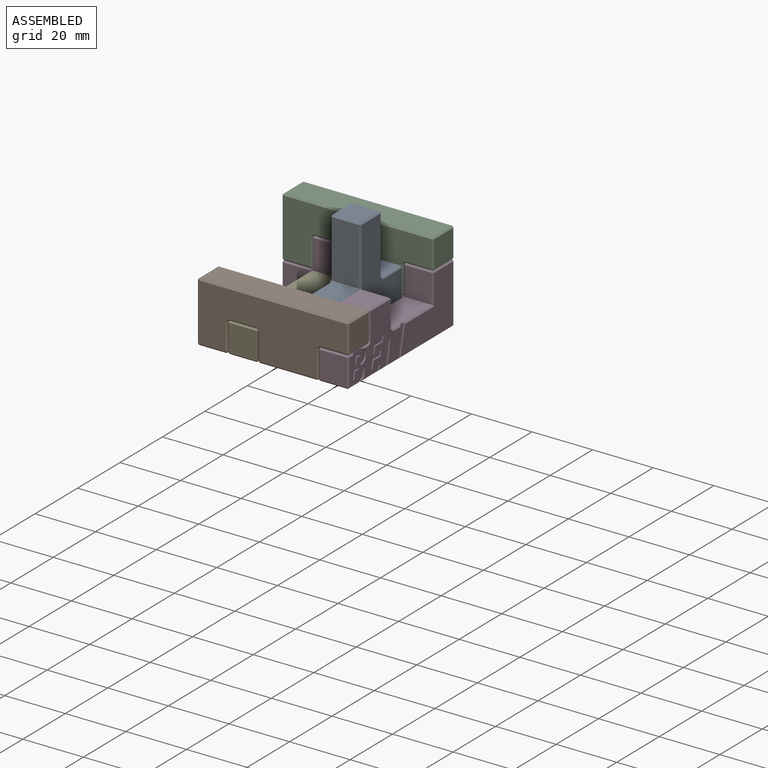
[diagram: assembled view]
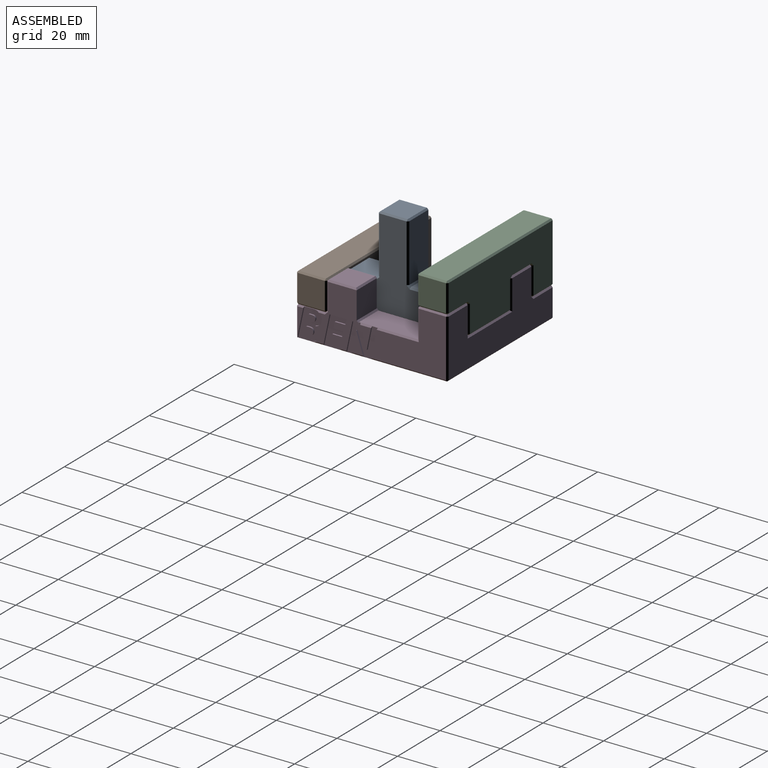
[diagram: assembled view, second angle]
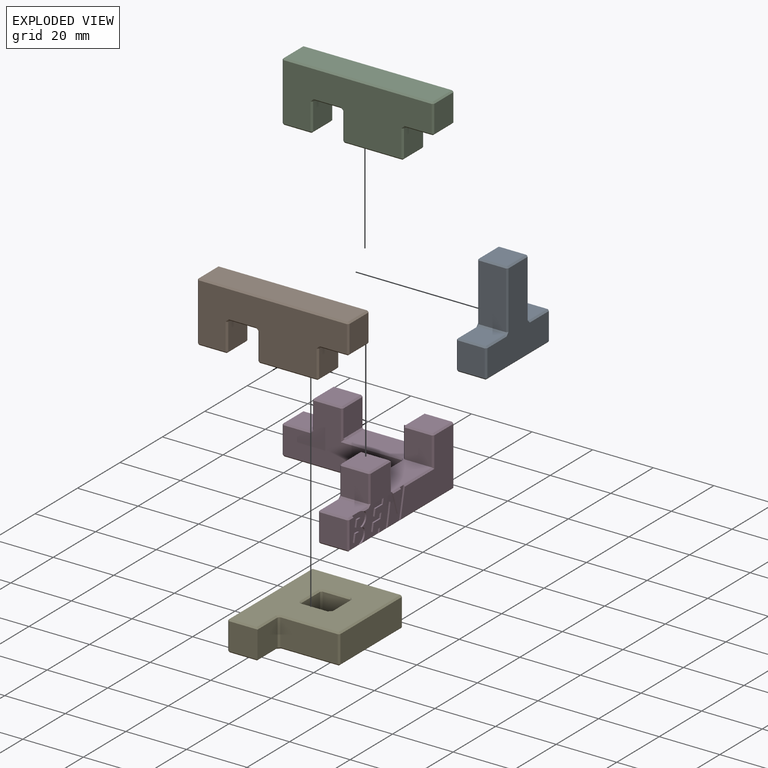
[diagram: exploded view]
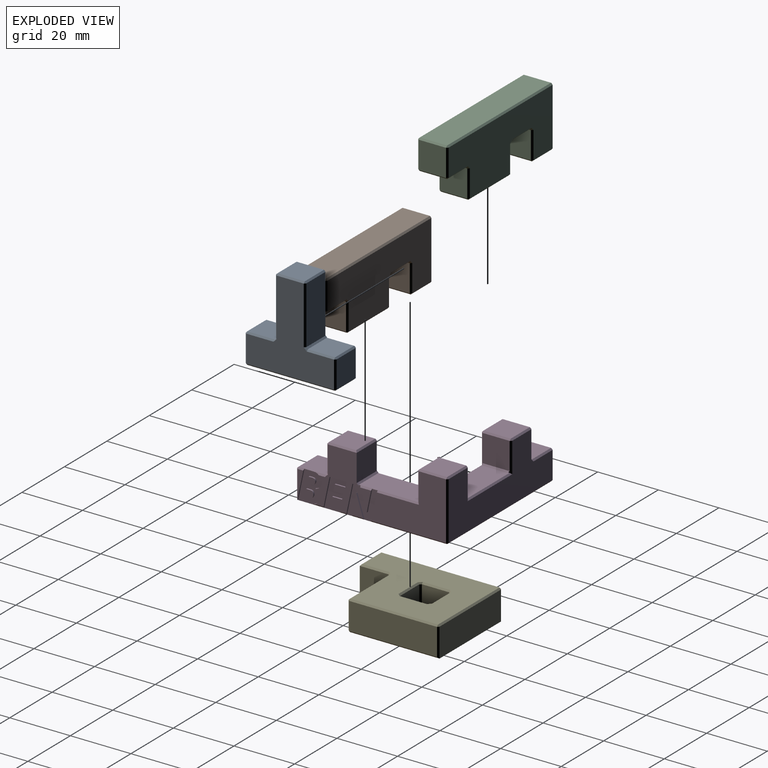
[diagram: exploded view, second angle]
ASSEMBLY  parts=5 mates=3
PART A: 50 faces, bbox 30x30x10 mm
  f0: plane 29x29mm, normal (0,0,1), area 442mm2, adj f10,f11,f14,f15,f24,f25,f30,f34
  f1: plane 29x29mm, normal (0,0,-1), area 442mm2, adj f17,f18,f22,f27,f32,f38,f42,f43
  f2: plane 29x9mm, normal (0,1,0), area 261mm2, adj f33,f34,f43,f44
  f3: plane 9x9mm, normal (-1,0,0), area 81mm2, adj f35,f44,f45,f49
  f4: plane 9x9mm, normal (0,-1,0), area 81mm2, adj f36,f37,f45,f46
  f5: plane 19x9mm, normal (-1,0,0), area 171mm2, adj f25,f26,f37,f38
  f6: plane 9x9mm, normal (0,-1,0), area 81mm2, adj f15,f16,f26,f27
  f7: plane 19x9mm, normal (1,0,0), area 171mm2, adj f10,f13,f16,f17
  f8: plane 9x9mm, normal (0,-1,0), area 81mm2, adj f13,f14,f22,f23
  f9: plane 9x9mm, normal (1,0,0), area 81mm2, adj f23,f24,f32,f33
  f10: plane 19x0.5mm, normal (0.71,0,0.71), area 13.4mm2, adj f0,f7,f11,f12
  f11: plane 1x1mm, normal (0.58,-0.58,0.58), area 0.6mm2, adj f0,f10,f13,f14
  f12: plane 0.5x0.5mm, normal (0.58,-0.58,0.58), area 0.2mm2, adj f10,f15,f16
  f13: plane 9x0.5mm, normal (0.71,-0.71,0), area 6.4mm2, adj f7,f8,f11,f18
  f14: plane 9x0.5mm, normal (0,-0.71,0.71), area 6.4mm2, adj f0,f8,f11,f19
  f15: plane 9x0.5mm, normal (0,-0.71,0.71), area 6.4mm2, adj f0,f6,f12,f20
  f16: plane 9x0.5mm, normal (0.71,-0.71,0), area 6.4mm2, adj f6,f7,f12,f21
  f17: plane 19x0.5mm, normal (0.71,0,-0.71), area 13.4mm2, adj f1,f7,f18,f21
  f18: plane 1x1mm, normal (0.58,-0.58,-0.58), area 0.6mm2, adj f1,f13,f17,f22
  f19: plane 0.5x0.5mm, normal (0.58,-0.58,0.58), area 0.2mm2, adj f14,f23,f24
  f20: plane 0.5x0.5mm, normal (-0.58,-0.58,0.58), area 0.2mm2, adj f15,f25,f26
  f21: plane 0.5x0.5mm, normal (0.58,-0.58,-0.58), area 0.2mm2, adj f16,f17,f27
  f22: plane 9x0.5mm, normal (0,-0.71,-0.71), area 6.4mm2, adj f1,f8,f18,f28
  f23: plane 9x0.5mm, normal (0.71,-0.71,0), area 6.4mm2, adj f8,f9,f19,f28
  f24: plane 9x0.5mm, normal (0.71,0,0.71), area 6.4mm2, adj f0,f9,f19,f29
  f25: plane 19x0.5mm, normal (-0.71,0,0.71), area 13.4mm2, adj f0,f5,f20,f30
  f26: plane 9x0.5mm, normal (-0.71,-0.71,0), area 6.4mm2, adj f5,f6,f20,f31
  f27: plane 9x0.5mm, normal (0,-0.71,-0.71), area 6.4mm2, adj f1,f6,f21,f31
  f28: plane 0.5x0.5mm, normal (0.58,-0.58,-0.58), area 0.2mm2, adj f22,f23,f32
  f29: plane 0.5x0.5mm, normal (0.58,0.58,0.58), area 0.2mm2, adj f24,f33,f34
  f30: plane 1x1mm, normal (-0.58,-0.58,0.58), area 0.6mm2, adj f0,f25,f36,f37
  f31: plane 0.5x0.5mm, normal (-0.58,-0.58,-0.58), area 0.2mm2, adj f26,f27,f38
  f32: plane 9x0.5mm, normal (0.71,0,-0.71), area 6.4mm2, adj f1,f9,f28,f39
  f33: plane 9x0.5mm, normal (0.71,0.71,0), area 6.4mm2, adj f2,f9,f29,f39
  f34: plane 29x0.5mm, normal (0,0.71,0.71), area 20.5mm2, adj f0,f2,f29,f40
  f35: plane 9x0.5mm, normal (-0.71,0,0.71), area 6.4mm2, adj f0,f3,f40,f41
  f36: plane 9x0.5mm, normal (0,-0.71,0.71), area 6.4mm2, adj f0,f4,f30,f41
  f37: plane 9x0.5mm, normal (-0.71,-0.71,0), area 6.4mm2, adj f4,f5,f30,f42
  f38: plane 19x0.5mm, normal (-0.71,0,-0.71), area 13.4mm2, adj f1,f5,f31,f42
  f39: plane 0.5x0.5mm, normal (0.58,0.58,-0.58), area 0.2mm2, adj f32,f33,f43
  f40: plane 0.5x0.5mm, normal (-0.58,0.58,0.58), area 0.2mm2, adj f34,f35,f44
  f41: plane 0.5x0.5mm, normal (-0.58,-0.58,0.58), area 0.2mm2, adj f35,f36,f45
  f42: plane 1x1mm, normal (-0.58,-0.58,-0.58), area 0.6mm2, adj f1,f37,f38,f46
  f43: plane 29x0.5mm, normal (0,0.71,-0.71), area 20.5mm2, adj f1,f2,f39,f47
  f44: plane 9x0.5mm, normal (-0.71,0.71,0), area 6.4mm2, adj f2,f3,f40,f47
  f45: plane 9x0.5mm, normal (-0.71,-0.71,0), area 6.4mm2, adj f3,f4,f41,f48
  f46: plane 9x0.5mm, normal (0,-0.71,-0.71), area 6.4mm2, adj f1,f4,f42,f48
  f47: plane 0.5x0.5mm, normal (-0.58,0.58,-0.58), area 0.2mm2, adj f43,f44,f49
  f48: plane 0.5x0.5mm, normal (-0.58,-0.58,-0.58), area 0.2mm2, adj f45,f46,f49
  f49: plane 9x0.5mm, normal (-0.71,0,-0.71), area 6.4mm2, adj f1,f3,f47,f48
PART B: 62 faces, bbox 50x20x10 mm
  f0: plane 49x19mm, normal (0,0,1), area 722.5mm2, adj f12,f13,f15,f19,f24,f29,f34,f39
  f1: plane 49x19mm, normal (0,0,-1), area 722.5mm2, adj f17,f21,f26,f27,f36,f37,f46,f47
  f2: plane 9x9mm, normal (-1,0,0), area 81mm2, adj f18,f19,f27,f28
  f3: plane 49x9mm, normal (0,-1,0), area 441mm2, adj f28,f29,f37,f38
  f4: plane 19x9mm, normal (1,0,0), area 171mm2, adj f38,f39,f47,f48
  f5: plane 9x9mm, normal (0,1,0), area 81mm2, adj f48,f49,f57,f58
  f6: plane 9x9mm, normal (-1,0,0), area 81mm2, adj f50,f55,f58,f61
  f7: plane 9x9mm, normal (0,1,0), area 81mm2, adj f44,f45,f55,f56
  f8: plane 9x9mm, normal (1,0,0), area 81mm2, adj f34,f35,f45,f46
  f9: plane 19x9mm, normal (0,1,0), area 171mm2, adj f24,f25,f35,f36
  f10: plane 9x9mm, normal (-1,0,0), area 81mm2, adj f15,f16,f25,f26
  f11: plane 9x9mm, normal (0,1,0), area 81mm2, adj f12,f16,f17,f18
  f12: plane 9x0.5mm, normal (0,0.71,0.71), area 6.4mm2, adj f0,f11,f13,f14
  f13: plane 1x1mm, normal (-0.58,0.58,0.58), area 0.6mm2, adj f0,f12,f15,f16
  f14: plane 0.5x0.5mm, normal (-0.58,0.58,0.58), area 0.2mm2, adj f12,f18,f19
  f15: plane 9x0.5mm, normal (-0.71,0,0.71), area 6.4mm2, adj f0,f10,f13,f20
  f16: plane 9x0.5mm, normal (-0.71,0.71,0), area 6.4mm2, adj f10,f11,f13,f21
  f17: plane 9x0.5mm, normal (0,0.71,-0.71), area 6.4mm2, adj f1,f11,f21,f22
  f18: plane 9x0.5mm, normal (-0.71,0.71,0), area 6.4mm2, adj f2,f11,f14,f22
  f19: plane 9x0.5mm, normal (-0.71,0,0.71), area 6.4mm2, adj f0,f2,f14,f23
  f20: plane 0.5x0.5mm, normal (-0.58,0.58,0.58), area 0.2mm2, adj f15,f24,f25
  f21: plane 1x1mm, normal (-0.58,0.58,-0.58), area 0.6mm2, adj f1,f16,f17,f26
  f22: plane 0.5x0.5mm, normal (-0.58,0.58,-0.58), area 0.2mm2, adj f17,f18,f27
  f23: plane 0.5x0.5mm, normal (-0.58,-0.58,0.58), area 0.2mm2, adj f19,f28,f29
  f24: plane 19x0.5mm, normal (0,0.71,0.71), area 13.4mm2, adj f0,f9,f20,f30
  f25: plane 9x0.5mm, normal (-0.71,0.71,0), area 6.4mm2, adj f9,f10,f20,f31
  f26: plane 9x0.5mm, normal (-0.71,0,-0.71), area 6.4mm2, adj f1,f10,f21,f31
  f27: plane 9x0.5mm, normal (-0.71,0,-0.71), area 6.4mm2, adj f1,f2,f22,f32
  f28: plane 9x0.5mm, normal (-0.71,-0.71,0), area 6.4mm2, adj f2,f3,f23,f32
  f29: plane 49x0.5mm, normal (0,-0.71,0.71), area 34.6mm2, adj f0,f3,f23,f33
  f30: plane 0.5x0.5mm, normal (0.58,0.58,0.58), area 0.2mm2, adj f24,f34,f35
  f31: plane 0.5x0.5mm, normal (-0.58,0.58,-0.58), area 0.2mm2, adj f25,f26,f36
  f32: plane 0.5x0.5mm, normal (-0.58,-0.58,-0.58), area 0.2mm2, adj f27,f28,f37
  f33: plane 0.5x0.5mm, normal (0.58,-0.58,0.58), area 0.2mm2, adj f29,f38,f39
  f34: plane 9x0.5mm, normal (0.71,0,0.71), area 6.4mm2, adj f0,f8,f30,f40
  f35: plane 9x0.5mm, normal (0.71,0.71,0), area 6.4mm2, adj f8,f9,f30,f41
  f36: plane 19x0.5mm, normal (0,0.71,-0.71), area 13.4mm2, adj f1,f9,f31,f41
  f37: plane 49x0.5mm, normal (0,-0.71,-0.71), area 34.6mm2, adj f1,f3,f32,f42
  f38: plane 9x0.5mm, normal (0.71,-0.71,0), area 6.4mm2, adj f3,f4,f33,f42
  f39: plane 19x0.5mm, normal (0.71,0,0.71), area 13.4mm2, adj f0,f4,f33,f43
  f40: plane 1x1mm, normal (0.58,0.58,0.58), area 0.6mm2, adj f0,f34,f44,f45
  f41: plane 0.5x0.5mm, normal (0.58,0.58,-0.58), area 0.2mm2, adj f35,f36,f46
  f42: plane 0.5x0.5mm, normal (0.58,-0.58,-0.58), area 0.2mm2, adj f37,f38,f47
  f43: plane 0.5x0.5mm, normal (0.58,0.58,0.58), area 0.2mm2, adj f39,f48,f49
  f44: plane 9x0.5mm, normal (0,0.71,0.71), area 6.4mm2, adj f0,f7,f40,f51
  f45: plane 9x0.5mm, normal (0.71,0.71,0), area 6.4mm2, adj f7,f8,f40,f52
  f46: plane 9x0.5mm, normal (0.71,0,-0.71), area 6.4mm2, adj f1,f8,f41,f52
  f47: plane 19x0.5mm, normal (0.71,0,-0.71), area 13.4mm2, adj f1,f4,f42,f53
  f48: plane 9x0.5mm, normal (0.71,0.71,0), area 6.4mm2, adj f4,f5,f43,f53
  f49: plane 9x0.5mm, normal (0,0.71,0.71), area 6.4mm2, adj f0,f5,f43,f54
  f50: plane 9x0.5mm, normal (-0.71,0,0.71), area 6.4mm2, adj f0,f6,f51,f54
  f51: plane 1x1mm, normal (-0.58,0.58,0.58), area 0.6mm2, adj f0,f44,f50,f55
  f52: plane 1x1mm, normal (0.58,0.58,-0.58), area 0.6mm2, adj f1,f45,f46,f56
  f53: plane 0.5x0.5mm, normal (0.58,0.58,-0.58), area 0.2mm2, adj f47,f48,f57
  f54: plane 0.5x0.5mm, normal (-0.58,0.58,0.58), area 0.2mm2, adj f49,f50,f58
  f55: plane 9x0.5mm, normal (-0.71,0.71,0), area 6.4mm2, adj f6,f7,f51,f59
  f56: plane 9x0.5mm, normal (0,0.71,-0.71), area 6.4mm2, adj f1,f7,f52,f59
  f57: plane 9x0.5mm, normal (0,0.71,-0.71), area 6.4mm2, adj f1,f5,f53,f60
  f58: plane 9x0.5mm, normal (-0.71,0.71,0), area 6.4mm2, adj f5,f6,f54,f60
  f59: plane 1x1mm, normal (-0.58,0.58,-0.58), area 0.6mm2, adj f1,f55,f56,f61
  f60: plane 0.5x0.5mm, normal (-0.58,0.58,-0.58), area 0.2mm2, adj f57,f58,f61
  f61: plane 9x0.5mm, normal (-0.71,0,-0.71), area 6.4mm2, adj f1,f6,f59,f60
PART C: 62 faces, bbox 50x20x10 mm
  f0: plane 49x19mm, normal (0,0,1), area 722.5mm2, adj f15,f16,f25,f26,f32,f35,f36,f45
  f1: plane 49x19mm, normal (0,0,-1), area 722.5mm2, adj f18,f19,f28,f29,f33,f38,f39,f48
  f2: plane 9x9mm, normal (-1,0,0), area 81mm2, adj f12,f16,f17,f18
  f3: plane 49x9mm, normal (0,-1,0), area 441mm2, adj f12,f15,f19,f20
  f4: plane 19x9mm, normal (1,0,0), area 171mm2, adj f20,f25,f29,f30
  f5: plane 9x9mm, normal (0,1,0), area 81mm2, adj f30,f35,f39,f40
  f6: plane 9x9mm, normal (-1,0,0), area 81mm2, adj f40,f45,f49,f50
  f7: plane 9x9mm, normal (0,1,0), area 81mm2, adj f50,f55,f58,f61
  f8: plane 9x9mm, normal (1,0,0), area 81mm2, adj f47,f56,f57,f61
  f9: plane 19x9mm, normal (0,1,0), area 171mm2, adj f37,f46,f47,f48
  f10: plane 9x9mm, normal (-1,0,0), area 81mm2, adj f27,f36,f37,f38
  f11: plane 9x9mm, normal (0,1,0), area 81mm2, adj f17,f26,f27,f28
  f12: plane 9x0.5mm, normal (-0.71,-0.71,0), area 6.4mm2, adj f2,f3,f13,f14
  f13: plane 0.5x0.5mm, normal (-0.58,-0.58,0.58), area 0.2mm2, adj f12,f15,f16
  f14: plane 0.5x0.5mm, normal (-0.58,-0.58,-0.58), area 0.2mm2, adj f12,f18,f19
  f15: plane 49x0.5mm, normal (0,-0.71,0.71), area 34.6mm2, adj f0,f3,f13,f21
  f16: plane 9x0.5mm, normal (-0.71,0,0.71), area 6.4mm2, adj f0,f2,f13,f22
  f17: plane 9x0.5mm, normal (-0.71,0.71,0), area 6.4mm2, adj f2,f11,f22,f23
  f18: plane 9x0.5mm, normal (-0.71,0,-0.71), area 6.4mm2, adj f1,f2,f14,f23
  f19: plane 49x0.5mm, normal (0,-0.71,-0.71), area 34.6mm2, adj f1,f3,f14,f24
  f20: plane 9x0.5mm, normal (0.71,-0.71,0), area 6.4mm2, adj f3,f4,f21,f24
  f21: plane 0.5x0.5mm, normal (0.58,-0.58,0.58), area 0.2mm2, adj f15,f20,f25
  f22: plane 0.5x0.5mm, normal (-0.58,0.58,0.58), area 0.2mm2, adj f16,f17,f26
  f23: plane 0.5x0.5mm, normal (-0.58,0.58,-0.58), area 0.2mm2, adj f17,f18,f28
  f24: plane 0.5x0.5mm, normal (0.58,-0.58,-0.58), area 0.2mm2, adj f19,f20,f29
  f25: plane 19x0.5mm, normal (0.71,0,0.71), area 13.4mm2, adj f0,f4,f21,f31
  f26: plane 9x0.5mm, normal (0,0.71,0.71), area 6.4mm2, adj f0,f11,f22,f32
  f27: plane 9x0.5mm, normal (-0.71,0.71,0), area 6.4mm2, adj f10,f11,f32,f33
  f28: plane 9x0.5mm, normal (0,0.71,-0.71), area 6.4mm2, adj f1,f11,f23,f33
  f29: plane 19x0.5mm, normal (0.71,0,-0.71), area 13.4mm2, adj f1,f4,f24,f34
  f30: plane 9x0.5mm, normal (0.71,0.71,0), area 6.4mm2, adj f4,f5,f31,f34
  f31: plane 0.5x0.5mm, normal (0.58,0.58,0.58), area 0.2mm2, adj f25,f30,f35
  f32: plane 1x1mm, normal (-0.58,0.58,0.58), area 0.6mm2, adj f0,f26,f27,f36
  f33: plane 1x1mm, normal (-0.58,0.58,-0.58), area 0.6mm2, adj f1,f27,f28,f38
  f34: plane 0.5x0.5mm, normal (0.58,0.58,-0.58), area 0.2mm2, adj f29,f30,f39
  f35: plane 9x0.5mm, normal (0,0.71,0.71), area 6.4mm2, adj f0,f5,f31,f41
  f36: plane 9x0.5mm, normal (-0.71,0,0.71), area 6.4mm2, adj f0,f10,f32,f42
  f37: plane 9x0.5mm, normal (-0.71,0.71,0), area 6.4mm2, adj f9,f10,f42,f43
  f38: plane 9x0.5mm, normal (-0.71,0,-0.71), area 6.4mm2, adj f1,f10,f33,f43
  f39: plane 9x0.5mm, normal (0,0.71,-0.71), area 6.4mm2, adj f1,f5,f34,f44
  f40: plane 9x0.5mm, normal (-0.71,0.71,0), area 6.4mm2, adj f5,f6,f41,f44
  f41: plane 0.5x0.5mm, normal (-0.58,0.58,0.58), area 0.2mm2, adj f35,f40,f45
  f42: plane 0.5x0.5mm, normal (-0.58,0.58,0.58), area 0.2mm2, adj f36,f37,f46
  f43: plane 0.5x0.5mm, normal (-0.58,0.58,-0.58), area 0.2mm2, adj f37,f38,f48
  f44: plane 0.5x0.5mm, normal (-0.58,0.58,-0.58), area 0.2mm2, adj f39,f40,f49
  f45: plane 9x0.5mm, normal (-0.71,0,0.71), area 6.4mm2, adj f0,f6,f41,f51
  f46: plane 19x0.5mm, normal (0,0.71,0.71), area 13.4mm2, adj f0,f9,f42,f52
  f47: plane 9x0.5mm, normal (0.71,0.71,0), area 6.4mm2, adj f8,f9,f52,f53
  f48: plane 19x0.5mm, normal (0,0.71,-0.71), area 13.4mm2, adj f1,f9,f43,f53
  f49: plane 9x0.5mm, normal (-0.71,0,-0.71), area 6.4mm2, adj f1,f6,f44,f54
  f50: plane 9x0.5mm, normal (-0.71,0.71,0), area 6.4mm2, adj f6,f7,f51,f54
  f51: plane 1x1mm, normal (-0.58,0.58,0.58), area 0.6mm2, adj f0,f45,f50,f55
  f52: plane 0.5x0.5mm, normal (0.58,0.58,0.58), area 0.2mm2, adj f46,f47,f56
  f53: plane 0.5x0.5mm, normal (0.58,0.58,-0.58), area 0.2mm2, adj f47,f48,f57
  f54: plane 1x1mm, normal (-0.58,0.58,-0.58), area 0.6mm2, adj f1,f49,f50,f58
  f55: plane 9x0.5mm, normal (0,0.71,0.71), area 6.4mm2, adj f0,f7,f51,f59
  f56: plane 9x0.5mm, normal (0.71,0,0.71), area 6.4mm2, adj f0,f8,f52,f59
  f57: plane 9x0.5mm, normal (0.71,0,-0.71), area 6.4mm2, adj f1,f8,f53,f60
  f58: plane 9x0.5mm, normal (0,0.71,-0.71), area 6.4mm2, adj f1,f7,f54,f60
  f59: plane 1x1mm, normal (0.58,0.58,0.58), area 0.6mm2, adj f0,f55,f56,f61
  f60: plane 1x1mm, normal (0.58,0.58,-0.58), area 0.6mm2, adj f1,f57,f58,f61
  f61: plane 9x0.5mm, normal (0.71,0.71,0), area 6.4mm2, adj f7,f8,f59,f60
PART D: 151 faces, bbox 50x50x20 mm
  f0: plane 9.63x0.5mm, normal (0,-0.71,-0.71), area 6.6mm2, adj f12,f17,f34,f49,f53,f114,f136
  f1: plane 0.51x0.51mm, normal (0,0,1), area 0.1mm2, adj f4,f5,f89
  f2: plane 21x0.75mm, normal (0,0.71,0.71), area 14.6mm2, adj f10,f15,f82,f86,f91
  f3: plane 19.25x0.5mm, normal (0.71,0.71,0), area 13.5mm2, adj f7,f10,f83,f84,f97
  f4: plane 10x0.51mm, normal (0,1,0), area 0.2mm2, adj f1,f15,f87,f89,f90
  f5: plane 10x0.51mm, normal (1,0,0), area 0.2mm2, adj f1,f15,f88,f89,f94
  f6: plane 9x9mm, normal (0,0,1), area 81mm2, adj f90,f94,f95,f98
  f7: plane 24.8x19mm, normal (1,0,0), area 304.6mm2, adj f3,f83,f85,f93,f98,f100
  f8: plane 7.23x3.69mm, normal (1,0,0), area 12.3mm2, adj f85,f103,f104,f105,f106
  f9: plane 39x19mm, normal (-1,0,0), area 442mm2, adj f37,f38,f42,f45,f49,f52,f53,f57
  f10: plane 49x19mm, normal (0,1,0), area 621.5mm2, adj f2,f3,f61,f69,f72,f76,f80,f82
  f11: plane 19.01x14.34mm, normal (1,0,0), area 148.2mm2, adj f24,f28,f29,f30,f31,f33,f40,f51
  f12: plane 49x49mm, normal (0,0,-1), area 801.5mm2, adj f0,f27,f28,f29,f53,f54,f56,f58
  f13: plane 7x3.65mm, normal (1,0,0), area 12.6mm2, adj f27,f101,f108,f109,f110,f111
  f14: plane 8.84x1.87mm, normal (1,0,0), area 8.2mm2, adj f33,f34,f114
  f15: plane 29x29mm, normal (0,0,1), area 351.4mm2, adj f2,f4,f5,f51,f62,f66,f70,f85
  f16: plane 9x9mm, normal (0,0,1), area 81mm2, adj f32,f33,f42,f43
  f17: plane 9x9mm, normal (0,-1,0), area 81mm2, adj f0,f34,f43,f49
  f18: plane 9x9mm, normal (0,0,1), area 81mm2, adj f59,f60,f68,f69
  f19: plane 39x19mm, normal (0,-1,0), area 441.5mm2, adj f48,f54,f59,f63,f64,f67,f70,f73
  f20: plane 9x9mm, normal (-1,0,0), area 81mm2, adj f48,f56,f60,f61
  f21: plane 9x9mm, normal (-1,0,0), area 81mm2, adj f67,f68,f75,f76
  f22: plane 9x9mm, normal (1,0,0), area 81mm2, adj f73,f79,f82,f86
  f23: plane 9x9mm, normal (0,0,1), area 81mm2, adj f74,f75,f79,f80
  f24: plane 9.5x9mm, normal (0,1,0), area 85.5mm2, adj f11,f44,f51,f52
  f25: plane 9x9mm, normal (0,-1,0), area 81mm2, adj f31,f32,f36,f37
  f26: plane 9x9mm, normal (0,0,1), area 81mm2, adj f36,f40,f44,f45
  f27: plane 3.91x0.5mm, normal (0.71,0,-0.71), area 2.7mm2, adj f12,f13,f101,f108
  f28: plane 2.09x0.5mm, normal (0.71,0,-0.71), area 1.4mm2, adj f11,f12,f99,f138
  f29: plane 5.18x0.5mm, normal (0.71,0,-0.71), area 2.5mm2, adj f11,f12,f113,f137
  f30: plane 1x1mm, normal (0.58,-0.58,0.58), area 0.6mm2, adj f11,f31,f32,f33
  f31: plane 9x0.5mm, normal (0.71,-0.71,0), area 6.4mm2, adj f11,f25,f30,f35
  f32: plane 9x0.5mm, normal (0,-0.71,0.71), area 6.4mm2, adj f16,f25,f30,f38
  f33: plane 9x0.5mm, normal (0.71,0,0.71), area 3.8mm2, adj f11,f14,f16,f30,f39,f114,f132,f134
  f34: plane 9.38x0.5mm, normal (0.71,-0.71,0), area 6.5mm2, adj f0,f14,f17,f39,f114
  f35: plane 0.5x0.5mm, normal (0.58,-0.58,0.58), area 0.2mm2, adj f31,f36,f40
  f36: plane 9x0.5mm, normal (0,-0.71,0.71), area 6.4mm2, adj f25,f26,f35,f41
  f37: plane 9x0.5mm, normal (-0.71,-0.71,0), area 6.4mm2, adj f9,f25,f38,f41
  f38: plane 1x1mm, normal (-0.58,-0.58,0.58), area 0.6mm2, adj f9,f32,f37,f42
  f39: plane 0.5x0.5mm, normal (0.58,-0.58,0.58), area 0.2mm2, adj f33,f34,f43
  f40: plane 9.5x0.5mm, normal (0.71,0,0.71), area 6.5mm2, adj f11,f26,f35,f44
  f41: plane 0.5x0.5mm, normal (-0.58,-0.58,0.58), area 0.2mm2, adj f36,f37,f45
  f42: plane 9x0.5mm, normal (-0.71,0,0.71), area 6.4mm2, adj f9,f16,f38,f46
  f43: plane 9x0.5mm, normal (0,-0.71,0.71), area 6.4mm2, adj f16,f17,f39,f46
  f44: plane 9.5x0.5mm, normal (0,0.71,0.71), area 6.5mm2, adj f24,f26,f40,f47
  f45: plane 9x0.5mm, normal (-0.71,0,0.71), area 6.4mm2, adj f9,f26,f41,f47
  f46: plane 0.5x0.5mm, normal (-0.58,-0.58,0.58), area 0.2mm2, adj f42,f43,f49
  f47: plane 0.5x0.5mm, normal (-0.58,0.58,0.58), area 0.2mm2, adj f44,f45,f52
  f48: plane 9x0.5mm, normal (-0.71,-0.71,0), area 6.4mm2, adj f19,f20,f50,f55
  f49: plane 9.25x0.5mm, normal (-0.71,-0.71,0), area 6.5mm2, adj f0,f9,f17,f46,f53
  f50: plane 0.5x0.5mm, normal (-0.58,-0.58,-0.58), area 0.2mm2, adj f48,f54,f56
  f51: plane 9.5x0.58mm, normal (0,0.71,0.71), area 6.8mm2, adj f11,f15,f24,f57,f85,f107
  f52: plane 9x0.5mm, normal (-0.71,0.71,0), area 6.4mm2, adj f9,f24,f47,f57
  f53: plane 39.25x0.5mm, normal (-0.71,0,-0.71), area 27.7mm2, adj f0,f9,f12,f49,f58
  f54: plane 39x0.5mm, normal (0,-0.71,-0.71), area 27.6mm2, adj f12,f19,f50,f58
  f55: plane 0.5x0.5mm, normal (-0.58,-0.58,0.58), area 0.2mm2, adj f48,f59,f60
  f56: plane 9.25x0.5mm, normal (-0.71,0,-0.71), area 6.5mm2, adj f12,f20,f50,f61,f84
  f57: plane 1x1mm, normal (-0.58,0.58,0.58), area 0.6mm2, adj f9,f51,f52,f62
  f58: plane 1x1mm, normal (-0.58,-0.58,-0.58), area 0.6mm2, adj f12,f53,f54,f63
  f59: plane 9x0.5mm, normal (0,-0.71,0.71), area 6.4mm2, adj f18,f19,f55,f64
  f60: plane 9x0.5mm, normal (-0.71,0,0.71), area 6.4mm2, adj f18,f20,f55,f65
  f61: plane 9.25x0.5mm, normal (-0.71,0.71,0), area 6.5mm2, adj f10,f20,f56,f65,f84
  f62: plane 19x0.5mm, normal (-0.71,0,0.71), area 13.4mm2, adj f9,f15,f57,f66
  f63: plane 9x0.5mm, normal (-0.71,-0.71,0), area 6.4mm2, adj f9,f19,f58,f66
  f64: plane 1x1mm, normal (-0.58,-0.58,0.58), area 0.6mm2, adj f19,f59,f67,f68
  f65: plane 0.5x0.5mm, normal (-0.58,0.58,0.58), area 0.2mm2, adj f60,f61,f69
  f66: plane 1x1mm, normal (-0.58,-0.58,0.58), area 0.6mm2, adj f15,f62,f63,f70
  f67: plane 9x0.5mm, normal (-0.71,-0.71,0), area 6.4mm2, adj f19,f21,f64,f71
  f68: plane 9x0.5mm, normal (-0.71,0,0.71), area 6.4mm2, adj f18,f21,f64,f72
  f69: plane 9x0.5mm, normal (0,0.71,0.71), area 6.4mm2, adj f10,f18,f65,f72
  f70: plane 20x0.75mm, normal (0,-0.71,0.71), area 14.1mm2, adj f15,f19,f66,f73,f86
  f71: plane 0.5x0.5mm, normal (-0.58,-0.58,0.58), area 0.2mm2, adj f67,f74,f75
  f72: plane 1x1mm, normal (-0.58,0.58,0.58), area 0.6mm2, adj f10,f68,f69,f76
  f73: plane 10x0.75mm, normal (0.71,-0.71,0), area 7mm2, adj f19,f22,f70,f77,f86
  f74: plane 9x0.5mm, normal (0,-0.71,0.71), area 6.4mm2, adj f19,f23,f71,f77
  f75: plane 9x0.5mm, normal (-0.71,0,0.71), area 6.4mm2, adj f21,f23,f71,f78
  f76: plane 9x0.5mm, normal (-0.71,0.71,0), area 6.4mm2, adj f10,f21,f72,f78
  f77: plane 0.5x0.5mm, normal (0.58,-0.58,0.58), area 0.2mm2, adj f73,f74,f79
  f78: plane 0.5x0.5mm, normal (-0.58,0.58,0.58), area 0.2mm2, adj f75,f76,f80
  f79: plane 9x0.5mm, normal (0.71,0,0.71), area 6.4mm2, adj f22,f23,f77,f81
  f80: plane 9x0.5mm, normal (0,0.71,0.71), area 6.4mm2, adj f10,f23,f78,f81
  f81: plane 0.5x0.5mm, normal (0.58,0.58,0.58), area 0.2mm2, adj f79,f80,f82
  f82: plane 10x0.75mm, normal (0.71,0.71,0), area 7mm2, adj f2,f10,f22,f81,f86
  f83: plane 25.15x0.5mm, normal (0.71,0,-0.71), area 17.7mm2, adj f3,f7,f12,f84,f100
  f84: plane 49.5x0.5mm, normal (0,0.71,-0.71), area 34.8mm2, adj f3,f10,f12,f56,f61,f83
  f85: plane 20x0.5mm, normal (0.71,0,0.71), area 12.5mm2, adj f7,f8,f15,f51,f93,f100,f102,f103
  f86: plane 9x0.5mm, normal (0.71,0,0.71), area 6.2mm2, adj f2,f15,f22,f70,f73,f82
  f87: plane 9.5x9mm, normal (-1,0,0), area 85.5mm2, adj f4,f15,f90,f91
  f88: plane 9.5x9mm, normal (0,-1,0), area 85.5mm2, adj f5,f15,f93,f94
  f89: plane 10x0.51mm, normal (-0.71,-0.71,0), area 7.1mm2, adj f1,f4,f5,f15
  f90: plane 9x0.5mm, normal (-0.71,0,0.71), area 6.4mm2, adj f4,f6,f87,f92
  f91: plane 10x0.5mm, normal (-0.71,0.71,0), area 6.9mm2, adj f2,f10,f87,f92
  f92: plane 0.5x0.5mm, normal (-0.58,0.58,0.58), area 0.2mm2, adj f90,f91,f95
  f93: plane 10x0.5mm, normal (0.71,-0.71,0), area 6.9mm2, adj f7,f85,f88,f96
  f94: plane 9x0.5mm, normal (0,-0.71,0.71), area 6.4mm2, adj f5,f6,f88,f96
  f95: plane 9x0.5mm, normal (0,0.71,0.71), area 6.4mm2, adj f6,f10,f92,f97
  f96: plane 0.5x0.5mm, normal (0.58,-0.58,0.58), area 0.2mm2, adj f93,f94,f98
  f97: plane 0.5x0.5mm, normal (0.58,0.58,0.58), area 0.2mm2, adj f3,f95,f98
  f98: plane 9x0.5mm, normal (0.71,0,0.71), area 6.4mm2, adj f6,f7,f96,f97
  f99: plane 9.92x2.09mm, normal (0,0.98,-0.21), area 4.9mm2, adj f11,f28,f107,f112
  f100: plane 9.92x2.1mm, normal (0,-0.98,0.21), area 4.9mm2, adj f7,f83,f85,f102,f112
  f101: plane 7.5x2.41mm, normal (0,0.95,0.31), area 3.8mm2, adj f13,f27,f111,f112
  f102: plane 1.86x0.08mm, normal (0,0,-1), area 0.2mm2, adj f85,f100,f103,f112
  f103: extruded ~5.83x1.22mm, area 2.9mm2, adj f8,f85,f102,f104,f112
  f104: extruded ~1.47x0.5mm, area 0.7mm2, adj f8,f103,f105,f112
  f105: plane 0.5x0.03mm, normal (0,0,-1), area 0mm2, adj f8,f104,f106,f112
  f106: plane 7.3x2.3mm, normal (0,-0.95,-0.3), area 3.7mm2, adj f8,f85,f105,f107,f112
  f107: plane 2.42x0.5mm, normal (0,0,-1), area 1mm2, adj f11,f51,f85,f99,f106,f112
  f108: plane 4.67x0.98mm, normal (0,-0.98,0.21), area 2.3mm2, adj f13,f27,f109,f112
  f109: extruded ~2.62x0.5mm, area 1.3mm2, adj f13,f108,f110,f112
  f110: plane 0.5x0.22mm, normal (0,-0.99,0.13), area 0.1mm2, adj f13,f109,f111,f112
  f111: plane 0.5x0.04mm, normal (0,0,1), area 0mm2, adj f13,f101,f110,f112
  f112: plane 10.19x9.92mm, normal (1,0,0), area 51.9mm2, adj f12,f99,f100,f101,f102,f103,f104,f105
  f113: extruded ~2.87x0.84mm, area 0.7mm2, adj f11,f29,f125,f136
  f114: plane 9.8x2.07mm, normal (0,0.98,-0.21), area 4.9mm2, adj f0,f14,f33,f34,f134,f136
  f115: plane 1.22x0.5mm, normal (0,0,-1), area 0.6mm2, adj f116,f135,f136,f149
  f116: plane 2.58x0.56mm, normal (0,-0.98,0.21), area 1.3mm2, adj f115,f117,f136,f149
  f117: plane 1.12x0.5mm, normal (0,0,1), area 0.6mm2, adj f116,f118,f136,f149
  f118: extruded ~1.24x1.1mm, area 1mm2, adj f117,f119,f136,f149
  f119: extruded ~1.09x0.5mm, area 0.6mm2, adj f118,f135,f136,f149
  f120: plane 1.01x0.5mm, normal (0,0,-1), area 0.5mm2, adj f121,f133,f136,f150
  f121: plane 2.21x0.5mm, normal (0,-0.98,0.21), area 1.1mm2, adj f120,f122,f136,f150
  f122: plane 1.03x0.5mm, normal (0,0,1), area 0.5mm2, adj f121,f123,f136,f150
  f123: extruded ~1.15x0.93mm, area 0.8mm2, adj f122,f124,f136,f150
  f124: extruded ~0.95x0.5mm, area 0.5mm2, adj f123,f133,f136,f150
  f125: extruded ~2.39x1.04mm, area 1.4mm2, adj f11,f113,f126,f136
  f126: extruded ~1.22x0.5mm, area 0.7mm2, adj f11,f125,f127,f136
  f127: extruded ~1.08x0.65mm, area 0.6mm2, adj f11,f126,f128,f136
  f128: plane 0.5x0.04mm, normal (0,-1,0), area 0mm2, adj f11,f127,f129,f136
  f129: extruded ~1.6x0.88mm, area 0.9mm2, adj f11,f128,f130,f136
  f130: extruded ~1.68x0.56mm, area 0.9mm2, adj f11,f129,f131,f136
  f131: extruded ~1.65x0.79mm, area 1mm2, adj f11,f130,f132,f136
  f132: extruded ~2.35x0.55mm, area 0.6mm2, adj f11,f33,f131,f134,f136
  f133: extruded ~1.23x0.5mm, area 0.6mm2, adj f120,f124,f136,f150
  f134: plane 2.89x0.08mm, normal (0,0,-1), area 0.2mm2, adj f33,f114,f132,f136
  f135: extruded ~1.24x0.5mm, area 0.7mm2, adj f115,f119,f136,f149
  f136: plane 9.92x8.1mm, normal (1,0,0), area 50.3mm2, adj f0,f12,f113,f114,f115,f116,f117,f118
  f137: plane 9.92x2.09mm, normal (0,0.98,-0.21), area 4.9mm2, adj f11,f29,f147,f148
  f138: plane 1.74x0.5mm, normal (0,-0.98,0.21), area 0.8mm2, adj f11,f28,f139,f148
  f139: plane 3.47x0.5mm, normal (0,0,-1), area 1.7mm2, adj f11,f138,f140,f148
  f140: plane 2.56x0.54mm, normal (0,-0.98,0.21), area 1.3mm2, adj f11,f139,f141,f148
  f141: plane 3.23x0.5mm, normal (0,0,1), area 1.6mm2, adj f11,f140,f142,f148
  f142: plane 1.72x0.5mm, normal (0,-0.98,0.21), area 0.9mm2, adj f11,f141,f143,f148
  f143: plane 3.24x0.5mm, normal (0,0,-1), area 1.6mm2, adj f11,f142,f144,f148
  f144: plane 2.18x0.5mm, normal (0,-0.98,0.2), area 1.1mm2, adj f11,f143,f145,f148
  f145: plane 3.47x0.5mm, normal (0,0,1), area 1.7mm2, adj f11,f144,f146,f148
  f146: plane 1.72x0.5mm, normal (0,-0.98,0.21), area 0.9mm2, adj f11,f145,f147,f148
  f147: plane 5.55x0.5mm, normal (0,0,-1), area 2.8mm2, adj f11,f137,f146,f148
  f148: plane 9.92x7.64mm, normal (1,0,0), area 38.1mm2, adj f12,f137,f138,f139,f140,f141,f142,f143
  f149: plane 2.91x2.58mm, normal (1,0,0), area 6.1mm2, adj f115,f116,f117,f118,f119,f135
  f150: plane 2.65x2.21mm, normal (1,0,0), area 4.8mm2, adj f120,f121,f122,f123,f124,f133
PART E: 48 faces, bbox 30x40x10 mm
  f0: plane 39x29mm, normal (0,0,1), area 812.5mm2, adj f13,f15,f16,f18,f19,f20,f21,f22
  f1: plane 39.5x29mm, normal (0,0,-1), area 846.5mm2, adj f4,f7,f8,f9,f10,f12,f14,f17
  f2: plane 19x9mm, normal (0,1,0), area 171mm2, adj f24,f25,f31,f32
  f3: plane 29x9mm, normal (-1,0,0), area 261mm2, adj f24,f28,f33,f34
  f4: plane 29x9.5mm, normal (0,-1,0), area 275.5mm2, adj f1,f33,f40,f46
  f5: plane 39x9mm, normal (1,0,0), area 351mm2, adj f41,f42,f46,f47
  f6: plane 9.5x9mm, normal (0,1,0), area 85.5mm2, adj f11,f35,f42,f43
  f7: plane 9.5x9mm, normal (1,0,0), area 85.5mm2, adj f1,f12,f14,f15
  f8: plane 9.5x9mm, normal (0,-1,0), area 85.5mm2, adj f1,f14,f20,f23
  f9: plane 9.5x9mm, normal (-1,0,0), area 85.5mm2, adj f1,f17,f21,f23
  f10: plane 9.5x9mm, normal (0,1,0), area 85.5mm2, adj f1,f12,f16,f17
  f11: plane 9.5x9mm, normal (-1,0,0), area 85.5mm2, adj f6,f30,f31,f39
  f12: plane 9.5x0.5mm, normal (0.71,0.71,0), area 6.7mm2, adj f1,f7,f10,f13
  f13: plane 1x1mm, normal (0.58,0.58,0.58), area 0.6mm2, adj f0,f12,f15,f16
  f14: plane 9.5x0.5mm, normal (0.71,-0.71,0), area 6.7mm2, adj f1,f7,f8,f18
  f15: plane 9x0.5mm, normal (0.71,0,0.71), area 6.4mm2, adj f0,f7,f13,f18
  f16: plane 9x0.5mm, normal (0,0.71,0.71), area 6.4mm2, adj f0,f10,f13,f19
  f17: plane 9.5x0.5mm, normal (-0.71,0.71,0), area 6.7mm2, adj f1,f9,f10,f19
  f18: plane 1x1mm, normal (0.58,-0.58,0.58), area 0.6mm2, adj f0,f14,f15,f20
  f19: plane 1x1mm, normal (-0.58,0.58,0.58), area 0.6mm2, adj f0,f16,f17,f21
  f20: plane 9x0.5mm, normal (0,-0.71,0.71), area 6.4mm2, adj f0,f8,f18,f22
  f21: plane 9x0.5mm, normal (-0.71,0,0.71), area 6.4mm2, adj f0,f9,f19,f22
  f22: plane 1x1mm, normal (-0.58,-0.58,0.58), area 0.6mm2, adj f0,f20,f21,f23
  f23: plane 9.5x0.5mm, normal (-0.71,-0.71,0), area 6.7mm2, adj f1,f8,f9,f22
  f24: plane 9x0.5mm, normal (-0.71,0.71,0), area 6.4mm2, adj f2,f3,f27,f29
  f25: plane 19x0.5mm, normal (0,0.71,0.71), area 13.4mm2, adj f0,f2,f26,f29
  f26: plane 1x1mm, normal (-0.58,0.58,0.58), area 0.6mm2, adj f0,f25,f30,f31
  f27: plane 0.5x0.5mm, normal (-0.58,0.58,-0.58), area 0.2mm2, adj f24,f28,f32
  f28: plane 29.5x0.5mm, normal (-0.71,0,-0.71), area 20.7mm2, adj f1,f3,f27,f33
  f29: plane 0.5x0.5mm, normal (-0.58,0.58,0.58), area 0.2mm2, adj f24,f25,f34
  f30: plane 9.5x0.5mm, normal (-0.71,0,0.71), area 6.5mm2, adj f0,f11,f26,f35
  f31: plane 9x0.5mm, normal (-0.71,0.71,0), area 6.4mm2, adj f2,f11,f26,f36
  f32: plane 19x0.5mm, normal (0,0.71,-0.71), area 13.4mm2, adj f1,f2,f27,f36
  f33: plane 9.5x0.5mm, normal (-0.71,-0.71,0), area 6.5mm2, adj f3,f4,f28,f37
  f34: plane 29x0.5mm, normal (-0.71,0,0.71), area 20.5mm2, adj f0,f3,f29,f37
  f35: plane 9.5x0.5mm, normal (0,0.71,0.71), area 6.5mm2, adj f0,f6,f30,f38
  f36: plane 1x1mm, normal (-0.58,0.58,-0.58), area 0.6mm2, adj f1,f31,f32,f39
  f37: plane 0.5x0.5mm, normal (-0.58,-0.58,0.58), area 0.2mm2, adj f33,f34,f40
  f38: plane 0.5x0.5mm, normal (0.58,0.58,0.58), area 0.2mm2, adj f35,f41,f42
  f39: plane 9.5x0.5mm, normal (-0.71,0,-0.71), area 6.5mm2, adj f1,f11,f36,f43
  f40: plane 29x0.5mm, normal (0,-0.71,0.71), area 20.5mm2, adj f0,f4,f37,f44
  f41: plane 39x0.5mm, normal (0.71,0,0.71), area 27.6mm2, adj f0,f5,f38,f44
  f42: plane 9x0.5mm, normal (0.71,0.71,0), area 6.4mm2, adj f5,f6,f38,f45
  f43: plane 9.5x0.5mm, normal (0,0.71,-0.71), area 6.5mm2, adj f1,f6,f39,f45
  f44: plane 0.5x0.5mm, normal (0.58,-0.58,0.58), area 0.2mm2, adj f40,f41,f46
  f45: plane 0.5x0.5mm, normal (0.58,0.58,-0.58), area 0.2mm2, adj f42,f43,f47
  f46: plane 9.5x0.5mm, normal (0.71,-0.71,0), area 6.5mm2, adj f4,f5,f44,f47
  f47: plane 39.5x0.5mm, normal (0.71,0,-0.71), area 27.8mm2, adj f1,f5,f45,f46
PLACE A rot(axis=(-0.58,-0.58,0.58),120deg) t=(-35.04,-64.54,-34.66)mm
PLACE B rot(axis=(0,0.71,-0.71),180deg) t=(-74.09,-35.04,102.63)mm
PLACE C rot(axis=(0,0.71,-0.71),180deg) t=(-1.76,4.96,112.01)mm
PLACE D t=(-50.04,-20.04,-9.78)mm
PLACE E rot(axis=(0,0,-1),180deg) t=(-132.54,35.53,-9.78)mm
MATE fastened D.f16 <-> B.f11  axis (0,0,1) through (-30.04,-40.04,0.22)mm
MATE fastened E.f0 <-> B.f7  axis (0,0,1) through (-60.04,-44.54,0.22)mm
MATE fastened C.f7 <-> D.f23  axis (0,0,-1) through (-60.04,-0.04,10.22)mm
